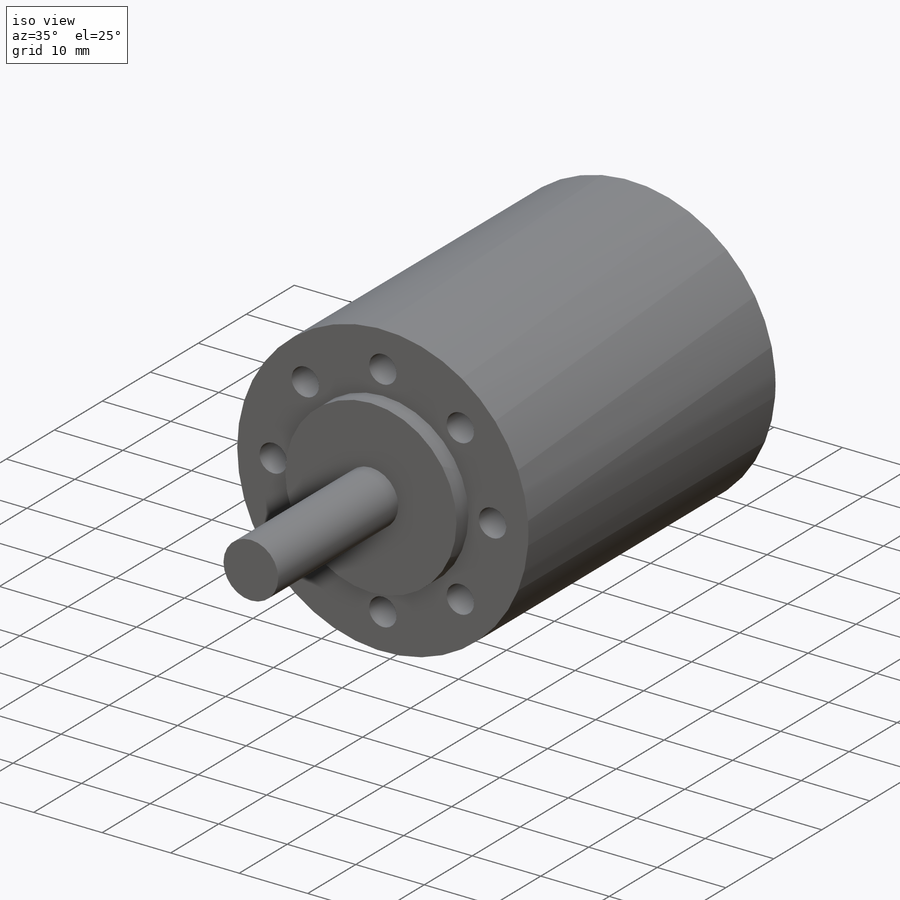
[diagram: iso view]
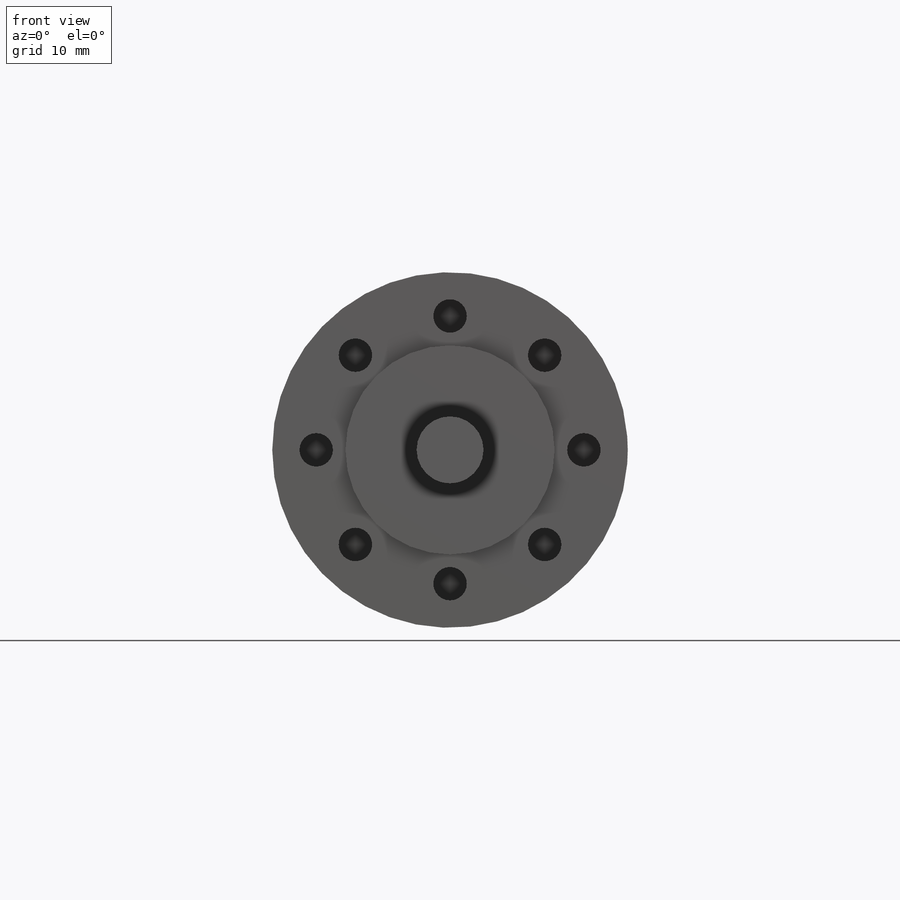
[diagram: front view]
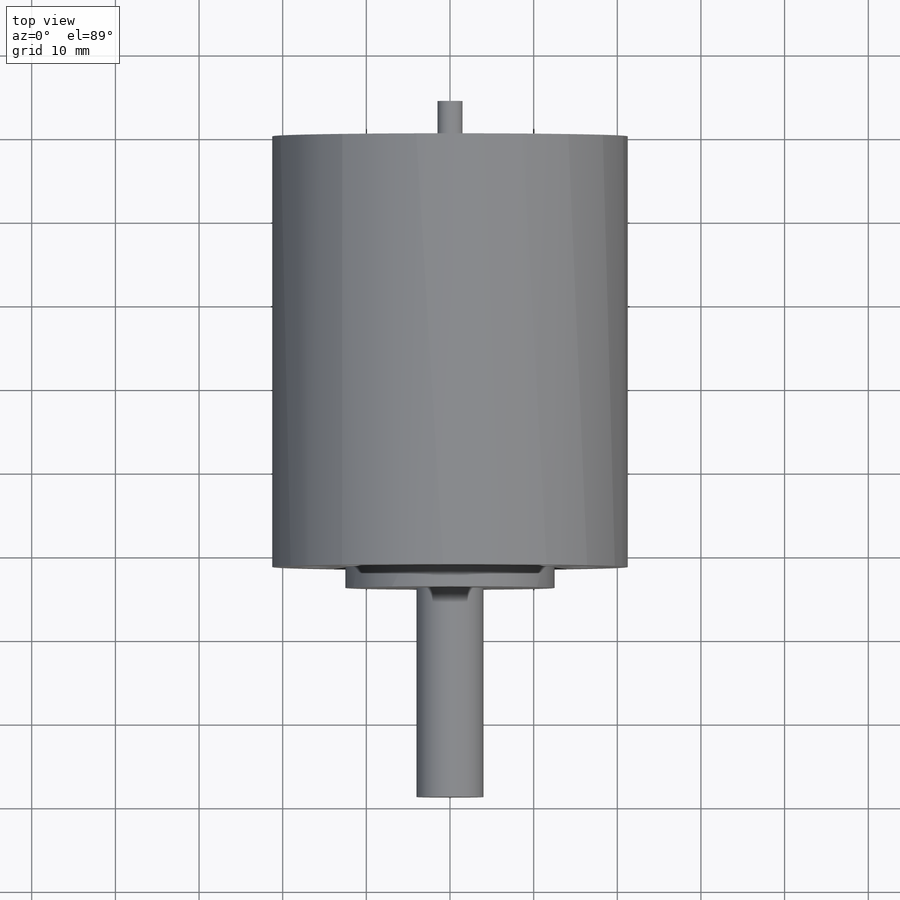
[diagram: top view]
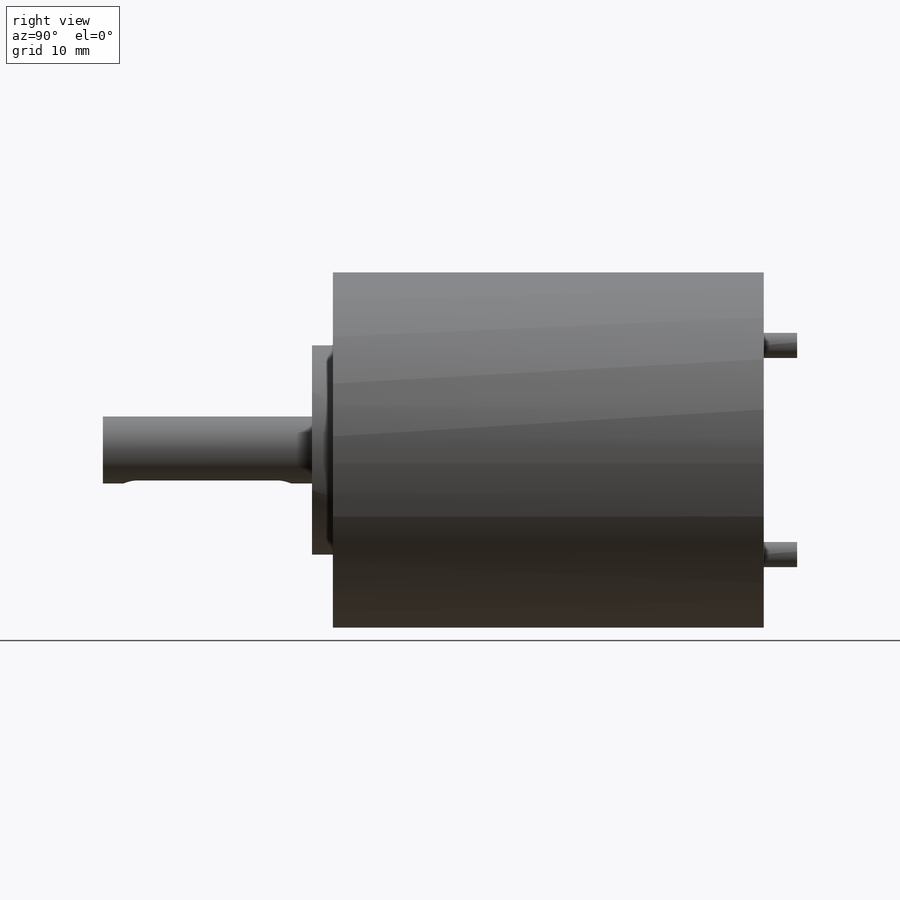
[diagram: right view]
SOLIDWORKS PART (.sldprt)
format: sldprt  version: not decoded by parser v0  size: 241,152 bytes
history: native  units: mm
features: sketch x9, cut_extrude x5, plane x4, extrude x4, material x1 (+10 scaffold rows collapsed)
feature tree (33):
  scaffold x10  (default folders/planes/origin — collapsed)
  material  "1.4000 (X6Cr13)"
  plane  "前基準面"
  plane  "上基準面"
  plane  "右基準面"
  sketch  "草圖1"  dims[D1=0.0mm]
  extrude  "填料-伸長1"  Depth=51.5mm
  sketch  "草圖2"  dims[D1=~1.941033mm]
  extrude  "填料-伸長2"  Depth=4mm
  sketch  "草圖3"  dims[D1=~10.206139mm]
  cut_extrude  "除料-伸長1"  Depth=1.5mm
  sketch  "草圖4"  dims[D1=~3.534174mm]
  cut_extrude  "除料-伸長2"  Depth=6.3mm
  sketch  "草圖5"  dims[D1=~0.787792mm]
  cut_extrude  "除料-伸長3"  Depth=7mm
  sketch  "草圖7"  dims[D1=~13.533604mm]
  extrude  "填料-伸長3"  Depth=2.5mm
  sketch  "草圖11"  dims[D1=~4.667033mm]
  extrude  "填料-伸長5"  Depth=25mm
  plane  "平面1"
  sketch  "草圖12"  dims[D1=16.7mm]
  cut_extrude  "除料-伸長11"  Depth=3.5mm
  sketch  "草圖13"  dims[c1.D1=~1.584464mm c2.D1=~46.436287deg]
  cut_extrude  "除料-伸長10"  Depth=7mm
decode coverage: 18 of 18 modeling features carry decoded parameters
note: ~ marks probable driven/reference dimensions
note: suppression state not decoded; provenance and decode notes live in map.json
